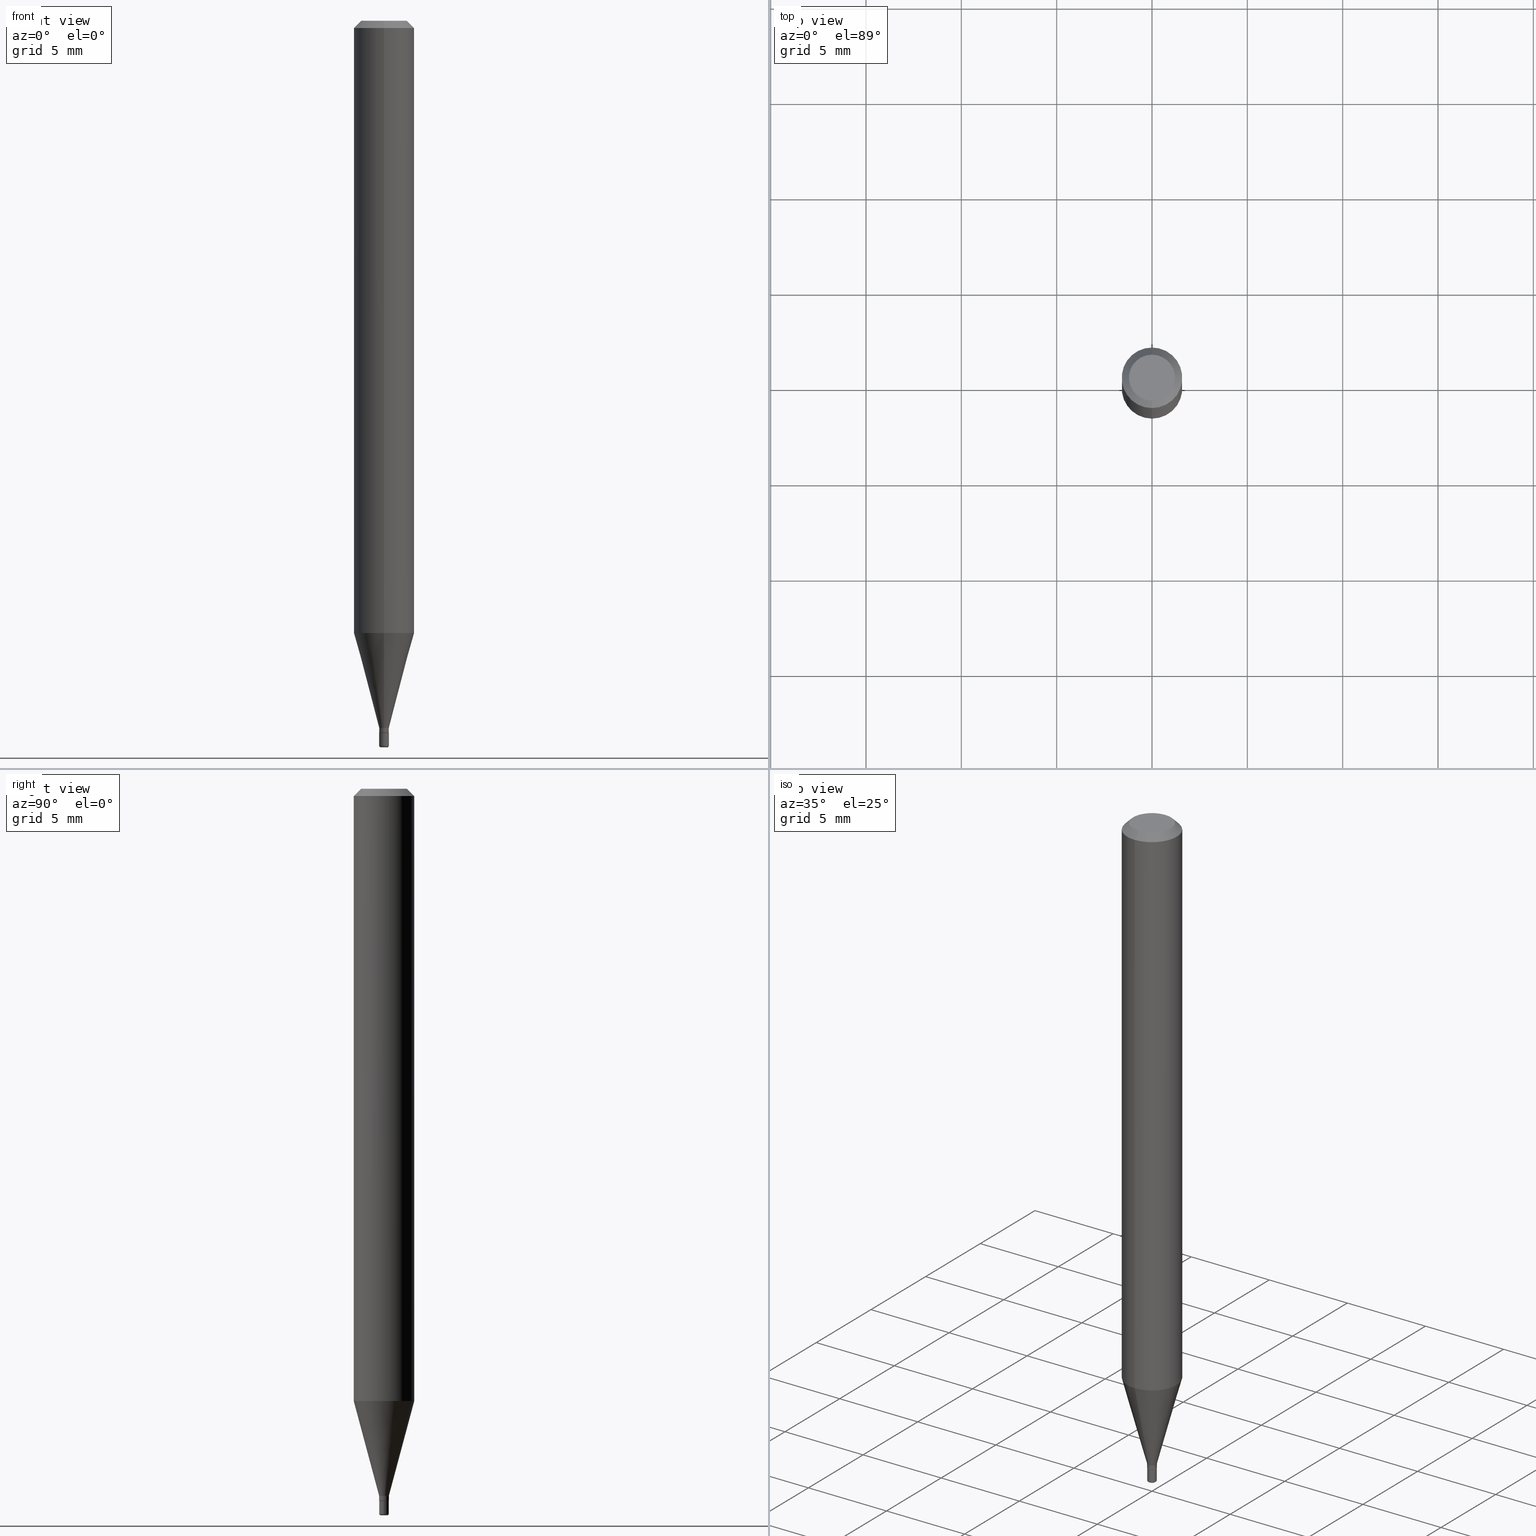
[diagram: canonical four-view strip — front | top / right | iso, engineering-drawing reading convention]
A machine part, canonical four-view strip (front | top / right | iso — engineering-drawing reading convention). The complete STEP part file that produces these views, byte-faithful:
ISO-10303-21;
HEADER;
FILE_DESCRIPTION (( 'STEP AP203' ),
    '1' );
FILE_NAME ('08988.STEP',
    '2024-02-29T21:04:08',
    ( '' ),
    ( '' ),
    'SwSTEP 2.0',
    'SolidWorks 2023',
    '' );
FILE_SCHEMA (( 'CONFIG_CONTROL_DESIGN' ));
ENDSEC;

DATA;
#1 = DIRECTION ( 'NONE',  ( -2.445468806185136597E-29, 3.491481338843145583E-15, 1.000000000000000000 ) ) ;
#2 = CYLINDRICAL_SURFACE ( 'NONE', #101, 0.06250000000000000000 ) ;
#3 = APPLICATION_PROTOCOL_DEFINITION ( 'international standard', 'config_control_design', 1994, #7 ) ;
#4 = CONICAL_SURFACE ( 'NONE', #393, 0.009499999999999987621, 0.7853981633972754173 ) ;
#5 = SECURITY_CLASSIFICATION ( '', '', #312 ) ;
#6 = AXIS2_PLACEMENT_3D ( 'NONE', #482, #290, #130 ) ;
#7 = APPLICATION_CONTEXT ( 'configuration controlled 3d designs of mechanical parts and assemblies' ) ;
#8 = ADVANCED_FACE ( 'NONE', ( #217 ), #253, .T. ) ;
#9 = DIRECTION ( 'NONE',  ( -6.982962677686265133E-15, -1.000000000000000000, 0.000000000000000000 ) ) ;
#10 = CIRCLE ( 'NONE', #454, 0.007000000000000001013 ) ;
#11 = EDGE_CURVE ( 'NONE', #504, #69, #243, .T. ) ;
#12 = CARTESIAN_POINT ( 'NONE',  ( -6.680636725634241101E-45, 9.538268826667372095E-31, 2.731855841564421065E-16 ) ) ;
#13 = ORIENTED_EDGE ( 'NONE', *, *, #352, .F. ) ;
#14 = CIRCLE ( 'NONE', #163, 0.01000000000000000021 ) ;
#15 = PRODUCT_DEFINITION_SHAPE ( 'NONE', 'NONE',  #166 ) ;
#16 = SHAPE_DEFINITION_REPRESENTATION ( #15, #374 ) ;
#17 = ORIENTED_EDGE ( 'NONE', *, *, #206, .F. ) ;
#18 = DIRECTION ( 'NONE',  ( -6.982962677686265922E-15, -1.000000000000000000, 0.000000000000000000 ) ) ;
#19 = CALENDAR_DATE ( 2024, 29, 2 ) ;
#20 = ORIENTED_EDGE ( 'NONE', *, *, #52, .F. ) ;
#21 = ORIENTED_EDGE ( 'NONE', *, *, #111, .F. ) ;
#22 = CARTESIAN_POINT ( 'NONE',  ( -0.007000000000000001013, -5.171588653716845491E-15, -1.500000000000000222 ) ) ;
#23 = CARTESIAN_POINT ( 'NONE',  ( 3.593599456806482161E-29, -5.130756106354806762E-15, -1.469500000000000028 ) ) ;
#24 = EDGE_CURVE ( 'NONE', #99, #262, #10, .T. ) ;
#25 = DIRECTION ( 'NONE',  ( 5.024295867787193854E-15, 0.7071067811864277797, 0.7071067811866673658 ) ) ;
#26 = FACE_OUTER_BOUND ( 'NONE', #355, .T. ) ;
#27 = ORIENTED_EDGE ( 'NONE', *, *, #52, .T. ) ;
#28 = ORIENTED_EDGE ( 'NONE', *, *, #330, .F. ) ;
#29 = AXIS2_PLACEMENT_3D ( 'NONE', #222, #34, #349 ) ;
#30 = CARTESIAN_POINT ( 'NONE',  ( -0.006999999999999999278, -5.177009572744982887E-15, -1.497000000000000108 ) ) ;
#31 = CONICAL_SURFACE ( 'NONE', #431, 0.009999999999999988065, 0.2617993877991492413 ) ;
#32 = COORDINATED_UNIVERSAL_TIME_OFFSET ( 5, 0, .BEHIND. ) ;
#33 = ORIENTED_EDGE ( 'NONE', *, *, #389, .T. ) ;
#34 = DIRECTION ( 'NONE',  ( -2.438088387897960049E-29, 3.491481338843145188E-15, 1.000000000000000000 ) ) ;
#35 = ORIENTED_EDGE ( 'NONE', *, *, #352, .T. ) ;
#36 = VERTEX_POINT ( 'NONE', #424 ) ;
#37 = CLOSED_SHELL ( 'NONE', ( #161, #320, #434, #318, #514, #510, #58, #362, #122, #203, #250, #216 ) ) ;
#38 = ORIENTED_EDGE ( 'NONE', *, *, #400, .T. ) ;
#39 = AXIS2_PLACEMENT_3D ( 'NONE', #165, #126, #408 ) ;
#40 = ORIENTED_EDGE ( 'NONE', *, *, #403, .T. ) ;
#41 = DIRECTION ( 'NONE',  ( -2.445457269007472935E-29, 3.491497860738215272E-15, 1.000000000000000000 ) ) ;
#42 = EDGE_CURVE ( 'NONE', #399, #53, #225, .T. ) ;
#43 = DIRECTION ( 'NONE',  ( -2.445457269007472935E-29, 3.491497860738215272E-15, 1.000000000000000000 ) ) ;
#44 = AXIS2_PLACEMENT_3D ( 'NONE', #334, #490, #97 ) ;
#45 = DIRECTION ( 'NONE',  ( -2.445457269007472935E-29, 3.491497860738215272E-15, 1.000000000000000000 ) ) ;
#46 = AXIS2_PLACEMENT_3D ( 'NONE', #221, #175, #338 ) ;
#47 = CARTESIAN_POINT ( 'NONE',  ( 0.009999999999999984596, -6.982962677686257096E-17, 4.876176775795928962E-31 ) ) ;
#48 = CARTESIAN_POINT ( 'NONE',  ( 0.006999999999999999278, -5.275628302991993622E-15, -1.497000000000000108 ) ) ;
#49 = CARTESIAN_POINT ( 'NONE',  ( 0.009999999999999970718, -5.296577191025051665E-15, -1.497000000000000108 ) ) ;
#50 = CONICAL_SURFACE ( 'NONE', #297, 0.06250000000000000000, 0.7853981633974488341 ) ;
#51 = PERSON_AND_ORGANIZATION_ROLE ( 'creator' ) ;
#52 = EDGE_CURVE ( 'NONE', #99, #70, #73, .T. ) ;
#53 = VERTEX_POINT ( 'NONE', #272 ) ;
#54 = VERTEX_POINT ( 'NONE', #345 ) ;
#55 = MANIFOLD_SOLID_BREP ( 'Body-Move/Copy2[2]', #37 ) ;
#56 = AXIS2_PLACEMENT_3D ( 'NONE', #177, #395, #120 ) ;
#57 = DIRECTION ( 'NONE',  ( -2.445457269007472935E-29, 3.491497860738215272E-15, 1.000000000000000000 ) ) ;
#58 = ADVANCED_FACE ( 'NONE', ( #386 ), #178, .T. ) ;
#59 = ORIENTED_EDGE ( 'NONE', *, *, #370, .F. ) ;
#60 = ORIENTED_EDGE ( 'NONE', *, *, #283, .T. ) ;
#61 = CARTESIAN_POINT ( 'NONE',  ( -4.364351673553607559E-16, -0.06250000000000442701, -1.264067332602633487 ) ) ;
#62 = LINE ( 'NONE', #258, #472 ) ;
#63 = CARTESIAN_POINT ( 'NONE',  ( -4.364351673553912750E-16, -0.06250000000000005551, -0.01499999999999948597 ) ) ;
#64 = CARTESIAN_POINT ( 'NONE',  ( 7.105427357604560509E-17, 0.009999999999994891448, -1.459999999999999964 ) ) ;
#65 = VERTEX_POINT ( 'NONE', #63 ) ;
#66 = DIRECTION ( 'NONE',  ( -2.445468806185136597E-29, 3.491481338843145583E-15, 1.000000000000000000 ) ) ;
#67 = DATE_AND_TIME ( #301, #247 ) ;
#68 = ORIENTED_EDGE ( 'NONE', *, *, #24, .F. ) ;
#69 = VERTEX_POINT ( 'NONE', #499 ) ;
#70 = VERTEX_POINT ( 'NONE', #226 ) ;
#71 = AXIS2_PLACEMENT_3D ( 'NONE', #176, #501, #145 ) ;
#72 = LOCAL_TIME ( 16, 4, 8.000000000000000000, #270 ) ;
#73 = CIRCLE ( 'NONE', #372, 0.002999999999999970572 ) ;
#74 = EDGE_CURVE ( 'NONE', #113, #54, #193, .T. ) ;
#75 = ORIENTED_EDGE ( 'NONE', *, *, #300, .F. ) ;
#76 = DIRECTION ( 'NONE',  ( -2.445468806185136597E-29, 3.491481338843145583E-15, 1.000000000000000000 ) ) ;
#77 = AXIS2_PLACEMENT_3D ( 'NONE', #435, #76, #359 ) ;
#78 = APPROVAL ( #164, 'UNSPECIFIED' ) ;
#79 = DIRECTION ( 'NONE',  ( -2.445457269007472935E-29, 3.491497860738215272E-15, 1.000000000000000000 ) ) ;
#80 = CARTESIAN_POINT ( 'NONE',  ( -6.680636725634241101E-45, 9.538268826667372095E-31, 2.731855841564421065E-16 ) ) ;
#81 = LINE ( 'NONE', #513, #321 ) ;
#82 = AXIS2_PLACEMENT_3D ( 'NONE', #387, #381, #495 ) ;
#83 = CARTESIAN_POINT ( 'NONE',  ( 0.000000000000000000, 0.000000000000000000, 0.000000000000000000 ) ) ;
#84 = DIRECTION ( 'NONE',  ( 2.445457269007472935E-29, -3.491497860738215272E-15, -1.000000000000000000 ) ) ;
#85 = ADVANCED_FACE ( 'NONE', ( #340 ), #459, .F. ) ;
#86 = DIRECTION ( 'NONE',  ( -2.445457269007472935E-29, 3.491497860738215272E-15, 1.000000000000000000 ) ) ;
#87 = EDGE_CURVE ( 'NONE', #54, #308, #160, .T. ) ;
#88 =( LENGTH_UNIT ( ) NAMED_UNIT ( * ) SI_UNIT ( $, .METRE. ) );
#89 = VERTEX_POINT ( 'NONE', #61 ) ;
#90 = CARTESIAN_POINT ( 'NONE',  ( 0.000000000000000000, 0.000000000000000000, 0.000000000000000000 ) ) ;
#91 = CYLINDRICAL_SURFACE ( 'NONE', #411, 0.009999999999999984596 ) ;
#92 = CIRCLE ( 'NONE', #39, 0.009499999999999987621 ) ;
#93 = DIRECTION ( 'NONE',  ( 1.839019923739593216E-15, 0.2588190451025239591, 0.9659258262890674240 ) ) ;
#94 = PERSON_AND_ORGANIZATION ( #110, #420 ) ;
#95 = ORIENTED_EDGE ( 'NONE', *, *, #11, .F. ) ;
#96 = ORIENTED_EDGE ( 'NONE', *, *, #460, .F. ) ;
#97 = DIRECTION ( 'NONE',  ( -6.982962677686265922E-15, -1.000000000000000000, 3.491497860738215272E-15 ) ) ;
#98 = EDGE_LOOP ( 'NONE', ( #139, #266, #463, #427 ) ) ;
#99 = VERTEX_POINT ( 'NONE', #22 ) ;
#100 = DIRECTION ( 'NONE',  ( -6.982962677686265133E-15, -1.000000000000000000, 0.000000000000000000 ) ) ;
#101 = AXIS2_PLACEMENT_3D ( 'NONE', #90, #327, #293 ) ;
#102 = DIRECTION ( 'NONE',  ( -4.937700262163694495E-15, -0.7071067811864228947, 0.7071067811866722508 ) ) ;
#103 = EDGE_LOOP ( 'NONE', ( #464, #35, #315, #471 ) ) ;
#104 = DIRECTION ( 'NONE',  ( 1.000000000000000000, -6.982962677686235945E-15, 0.000000000000000000 ) ) ;
#105 = DATE_AND_TIME ( #19, #507 ) ;
#106 = ORIENTED_EDGE ( 'NONE', *, *, #300, .T. ) ;
#107 = DIRECTION ( 'NONE',  ( -6.982962677686265922E-15, -1.000000000000000000, 0.000000000000000000 ) ) ;
#108 = PLANE ( 'NONE',  #29 ) ;
#109 = VECTOR ( 'NONE', #117, 39.37007874015748143 ) ;
#110 = PERSON ( 'UNSPECIFIED', 'UNSPECIFIED', 'UNSPECIFIED', ('UNSPECIFIED'), ('UNSPECIFIED'), ('UNSPECIFIED') ) ;
#111 = EDGE_CURVE ( 'NONE', #69, #89, #183, .T. ) ;
#112 = CARTESIAN_POINT ( 'NONE',  ( 3.668185903511136868E-31, -5.237246791107218877E-17, -0.01499999999999970281 ) ) ;
#113 = VERTEX_POINT ( 'NONE', #278 ) ;
#114 = DIRECTION ( 'NONE',  ( 2.445457269007472655E-29, -3.491497860738215272E-15, -1.000000000000000000 ) ) ;
#115 = AXIS2_PLACEMENT_3D ( 'NONE', #135, #348, #152 ) ;
#116 = LINE ( 'NONE', #336, #436 ) ;
#117 = DIRECTION ( 'NONE',  ( -2.445457269007472935E-29, 3.491497860738215272E-15, 1.000000000000000000 ) ) ;
#118 = EDGE_CURVE ( 'NONE', #467, #267, #280, .T. ) ;
#119 = CARTESIAN_POINT ( 'NONE',  ( 3.316907271900976589E-16, 0.04750000000000000749, -2.925335630684416481E-17 ) ) ;
#120 = DIRECTION ( 'NONE',  ( 1.000000000000000000, -6.982962677686332186E-15, 0.000000000000000000 ) ) ;
#121 = LINE ( 'NONE', #285, #123 ) ;
#122 = ADVANCED_FACE ( 'NONE', ( #249 ), #153, .F. ) ;
#123 = VECTOR ( 'NONE', #365, 39.37007874015748143 ) ;
#124 = LINE ( 'NONE', #47, #461 ) ;
#125 = AXIS2_PLACEMENT_3D ( 'NONE', #494, #428, #187 ) ;
#126 = DIRECTION ( 'NONE',  ( -2.445457269007472935E-29, 3.491497860738215272E-15, 1.000000000000000000 ) ) ;
#127 = CARTESIAN_POINT ( 'NONE',  ( 2.575717417130697276E-16, 0.009999999999994891448, -1.459999999999999964 ) ) ;
#128 = DIRECTION ( 'NONE',  ( -4.851104656540966641E-15, -0.7071067811865503483, -0.7071067811865446862 ) ) ;
#129 = EDGE_CURVE ( 'NONE', #89, #65, #121, .T. ) ;
#130 = DIRECTION ( 'NONE',  ( 1.000000000000000000, 0.000000000000000000, 0.000000000000000000 ) ) ;
#131 = ORIENTED_EDGE ( 'NONE', *, *, #295, .T. ) ;
#132 = AXIS2_PLACEMENT_3D ( 'NONE', #23, #57, #316 ) ;
#133 = ORIENTED_EDGE ( 'NONE', *, *, #277, .T. ) ;
#134 = DIRECTION ( 'NONE',  ( -2.445457269007472935E-29, 3.491497860738215272E-15, 1.000000000000000000 ) ) ;
#135 = CARTESIAN_POINT ( 'NONE',  ( 3.660866802859150328E-29, -5.226747564248189155E-15, -1.497000000000000108 ) ) ;
#136 = DIRECTION ( 'NONE',  ( -2.445468806185136597E-29, 3.491481338843145583E-15, 1.000000000000000000 ) ) ;
#137 = FACE_OUTER_BOUND ( 'NONE', #350, .T. ) ;
#138 = ORIENTED_EDGE ( 'NONE', *, *, #74, .F. ) ;
#139 = ORIENTED_EDGE ( 'NONE', *, *, #426, .F. ) ;
#140 = AXIS2_PLACEMENT_3D ( 'NONE', #404, #480, #325 ) ;
#141 = APPROVAL_PERSON_ORGANIZATION ( #254, #78, #409 ) ;
#142 = DIRECTION ( 'NONE',  ( 7.105427357601001859E-15, 1.000000000000000000, -3.491481338843145583E-15 ) ) ;
#143 = EDGE_CURVE ( 'NONE', #53, #399, #14, .T. ) ;
#144 = EDGE_LOOP ( 'NONE', ( #20, #508, #167, #233 ) ) ;
#145 = DIRECTION ( 'NONE',  ( -6.982962677686265133E-15, -1.000000000000000000, 3.491497860738214878E-15 ) ) ;
#146 = ORIENTED_EDGE ( 'NONE', *, *, #304, .T. ) ;
#147 = ADVANCED_FACE ( 'NONE', ( #319 ), #108, .F. ) ;
#148 = CARTESIAN_POINT ( 'NONE',  ( 6.982962677689861205E-17, 0.009999999999994867161, -1.470000000000000195 ) ) ;
#149 = ORIENTED_EDGE ( 'NONE', *, *, #304, .F. ) ;
#150 = CIRCLE ( 'NONE', #281, 0.009499999999999987621 ) ;
#151 = AXIS2_PLACEMENT_3D ( 'NONE', #440, #170, #248 ) ;
#152 = DIRECTION ( 'NONE',  ( 1.000000000000000000, -6.982962677686256455E-15, 0.000000000000000000 ) ) ;
#153 = PLANE ( 'NONE',  #218 ) ;
#154 = EDGE_LOOP ( 'NONE', ( #351, #27, #59, #28 ) ) ;
#155 = APPROVAL ( #194, 'UNSPECIFIED' ) ;
#156 = ORIENTED_EDGE ( 'NONE', *, *, #74, .T. ) ;
#157 = CARTESIAN_POINT ( 'NONE',  ( 0.01000000000000000021, -5.202307194876286528E-15, -1.470000000000000195 ) ) ;
#158 = CARTESIAN_POINT ( 'NONE',  ( 7.105427357600990913E-17, 0.009999999999999988065, -3.491497860738210835E-17 ) ) ;
#159 = DIRECTION ( 'NONE',  ( -2.445457269007472935E-29, 3.491497860738215272E-15, 1.000000000000000000 ) ) ;
#160 = CIRCLE ( 'NONE', #237, 0.009999999999999988065 ) ;
#161 = ADVANCED_FACE ( 'NONE', ( #414 ), #215, .T. ) ;
#162 = DIRECTION ( 'NONE',  ( -2.445457269007472935E-29, 3.491497860738215272E-15, 1.000000000000000000 ) ) ;
#163 = AXIS2_PLACEMENT_3D ( 'NONE', #292, #209, #516 ) ;
#164 = APPROVAL_STATUS ( 'not_yet_approved' ) ;
#165 = CARTESIAN_POINT ( 'NONE',  ( 3.594822185440985220E-29, -5.132501855285176510E-15, -1.470000000000000195 ) ) ;
#166 = PRODUCT_DEFINITION ( 'UNKNOWN', '', #205, #244 ) ;
#167 = ORIENTED_EDGE ( 'NONE', *, *, #330, .T. ) ;
#168 = DIRECTION ( 'NONE',  ( 6.982962677686265922E-15, 1.000000000000000000, -3.483106191921935554E-15 ) ) ;
#169 = FACE_OUTER_BOUND ( 'NONE', #246, .T. ) ;
#170 = DIRECTION ( 'NONE',  ( -2.445457269007472935E-29, 3.491497860738215272E-15, 1.000000000000000000 ) ) ;
#171 = CONICAL_SURFACE ( 'NONE', #190, 0.06250000000000000000, 0.7853981633974488341 ) ;
#172 = PLANE ( 'NONE',  #44 ) ;
#173 = APPROVAL_PERSON_ORGANIZATION ( #94, #291, #470 ) ;
#174 = EDGE_LOOP ( 'NONE', ( #383, #182, #198, #60 ) ) ;
#175 = DIRECTION ( 'NONE',  ( -2.445468806185136597E-29, 3.491481338843145583E-15, 1.000000000000000000 ) ) ;
#176 = CARTESIAN_POINT ( 'NONE',  ( 0.000000000000000000, 0.000000000000000000, 0.000000000000000000 ) ) ;
#177 = CARTESIAN_POINT ( 'NONE',  ( 3.668203209277704895E-29, -5.237222008264718177E-15, -1.500000000000000222 ) ) ;
#178 = CYLINDRICAL_SURFACE ( 'NONE', #125, 0.06250000000000000000 ) ;
#179 = PRODUCT ( '08988', '08988', '', ( #333 ) ) ;
#180 = DATE_AND_TIME ( #219, #289 ) ;
#181 = ORIENTED_EDGE ( 'NONE', *, *, #481, .F. ) ;
#182 = ORIENTED_EDGE ( 'NONE', *, *, #438, .F. ) ;
#183 = LINE ( 'NONE', #344, #483 ) ;
#184 = EDGE_CURVE ( 'NONE', #113, #36, #150, .T. ) ;
#185 = ORIENTED_EDGE ( 'NONE', *, *, #283, .F. ) ;
#186 = EDGE_CURVE ( 'NONE', #89, #271, #309, .T. ) ;
#187 = DIRECTION ( 'NONE',  ( -6.982962677686265922E-15, -1.000000000000000000, 3.491497860738214878E-15 ) ) ;
#188 = EDGE_LOOP ( 'NONE', ( #397, #453, #191, #181 ) ) ;
#189 = DIRECTION ( 'NONE',  ( 6.982962677686265922E-15, 1.000000000000000000, -3.483106191921935554E-15 ) ) ;
#190 = AXIS2_PLACEMENT_3D ( 'NONE', #307, #302, #168 ) ;
#191 = ORIENTED_EDGE ( 'NONE', *, *, #42, .F. ) ;
#192 = CC_DESIGN_APPROVAL ( #155, ( #205 ) ) ;
#193 = LINE ( 'NONE', #311, #245 ) ;
#194 = APPROVAL_STATUS ( 'not_yet_approved' ) ;
#195 = CARTESIAN_POINT ( 'NONE',  ( 3.091222647027998016E-29, -4.413488387611157354E-15, -1.264067332602633709 ) ) ;
#196 = APPROVAL_ROLE ( '' ) ;
#197 = EDGE_LOOP ( 'NONE', ( #106, #432, #390, #21 ) ) ;
#198 = ORIENTED_EDGE ( 'NONE', *, *, #118, .T. ) ;
#199 = CIRCLE ( 'NONE', #257, 0.06250000000000000000 ) ;
#200 = ORIENTED_EDGE ( 'NONE', *, *, #184, .T. ) ;
#201 = CARTESIAN_POINT ( 'NONE',  ( 3.668185903511136868E-31, -5.237246791107218877E-17, -0.01499999999999970281 ) ) ;
#202 = DIRECTION ( 'NONE',  ( -2.445457269007472935E-29, 3.491497860738215272E-15, 1.000000000000000000 ) ) ;
#203 = ADVANCED_FACE ( 'NONE', ( #452 ), #172, .F. ) ;
#204 = AXIS2_PLACEMENT_3D ( 'NONE', #491, #265, #18 ) ;
#205 = PRODUCT_DEFINITION_FORMATION_WITH_SPECIFIED_SOURCE ( 'ANY', '', #179, .NOT_KNOWN. ) ;
#206 = EDGE_CURVE ( 'NONE', #308, #54, #441, .T. ) ;
#207 = DIRECTION ( 'NONE',  ( -2.445468806185136877E-29, 3.491481338843145188E-15, 1.000000000000000000 ) ) ;
#208 = DIRECTION ( 'NONE',  ( -6.982962677686265133E-15, -1.000000000000000000, 3.491497860738214483E-15 ) ) ;
#209 = DIRECTION ( 'NONE',  ( -2.445468806185136597E-29, 3.491481338843145583E-15, 1.000000000000000000 ) ) ;
#210 = VECTOR ( 'NONE', #93, 39.37007874015748143 ) ;
#211 = DIRECTION ( 'NONE',  ( -6.982962677686265133E-15, -1.000000000000000000, 0.000000000000000000 ) ) ;
#212 = CARTESIAN_POINT ( 'NONE',  ( 3.570367612750911147E-29, -5.097586876677794968E-15, -1.459999999999999964 ) ) ;
#213 = ADVANCED_FACE ( 'NONE', ( #468 ), #274, .T. ) ;
#214 =( CONVERSION_BASED_UNIT ( 'INCH', #326 ) LENGTH_UNIT ( ) NAMED_UNIT ( #475 ) );
#215 = CYLINDRICAL_SURFACE ( 'NONE', #71, 0.009999999999999988065 ) ;
#216 = ADVANCED_FACE ( 'NONE', ( #26 ), #256, .T. ) ;
#217 = FACE_OUTER_BOUND ( 'NONE', #144, .T. ) ;
#218 = AXIS2_PLACEMENT_3D ( 'NONE', #119, #114, #479 ) ;
#219 = CALENDAR_DATE ( 2024, 29, 2 ) ;
#220 = ORIENTED_EDGE ( 'NONE', *, *, #129, .T. ) ;
#221 = CARTESIAN_POINT ( 'NONE',  ( 3.660866802859150328E-29, -5.226747564248189155E-15, -1.497000000000000108 ) ) ;
#222 = CARTESIAN_POINT ( 'NONE',  ( 3.582686580359766038E-29, -5.359686688179453325E-15, -1.500000000000000222 ) ) ;
#223 = CARTESIAN_POINT ( 'NONE',  ( 3.594839145092150820E-29, -5.132477568099424807E-15, -1.470000000000000195 ) ) ;
#224 = ORIENTED_EDGE ( 'NONE', *, *, #184, .F. ) ;
#225 = CIRCLE ( 'NONE', #232, 0.01000000000000000021 ) ;
#226 = CARTESIAN_POINT ( 'NONE',  ( -0.009999999999999970718, -5.108558292597796111E-15, -1.497000000000000108 ) ) ;
#227 = PERSON_AND_ORGANIZATION_ROLE ( 'creator' ) ;
#228 = ORIENTED_EDGE ( 'NONE', *, *, #87, .F. ) ;
#229 = AXIS2_PLACEMENT_3D ( 'NONE', #80, #380, #358 ) ;
#230 = CC_DESIGN_APPROVAL ( #78, ( #166 ) ) ;
#231 = EDGE_LOOP ( 'NONE', ( #96, #38, #236, #313 ) ) ;
#232 = AXIS2_PLACEMENT_3D ( 'NONE', #223, #66, #104 ) ;
#233 = ORIENTED_EDGE ( 'NONE', *, *, #400, .F. ) ;
#234 = FACE_OUTER_BOUND ( 'NONE', #154, .T. ) ;
#235 = CARTESIAN_POINT ( 'NONE',  ( 4.440892098500625669E-16, 0.06250000000000000000, -2.182186162961384299E-16 ) ) ;
#236 = ORIENTED_EDGE ( 'NONE', *, *, #481, .T. ) ;
#237 = AXIS2_PLACEMENT_3D ( 'NONE', #384, #134, #100 ) ;
#238 = MANIFOLD_SOLID_BREP ( 'Body-Move/Copy2[1]', #398 ) ;
#239 = CIRCLE ( 'NONE', #357, 0.06250000000000000000 ) ;
#240 = LINE ( 'NONE', #158, #488 ) ;
#241 = DIRECTION ( 'NONE',  ( -6.982962677686266711E-15, -1.000000000000000000, 3.491481338843145583E-15 ) ) ;
#242 = DIRECTION ( 'NONE',  ( -6.982962677686265922E-15, -1.000000000000000000, 3.483106191921935554E-15 ) ) ;
#243 = CIRCLE ( 'NONE', #323, 0.009999999999999988065 ) ;
#244 = DESIGN_CONTEXT ( 'detailed design', #7, 'design' ) ;
#245 = VECTOR ( 'NONE', #25, 39.37007874015748143 ) ;
#246 = EDGE_LOOP ( 'NONE', ( #138, #200, #40, #228 ) ) ;
#247 = LOCAL_TIME ( 16, 4, 8.000000000000000000, #354 ) ;
#248 = DIRECTION ( 'NONE',  ( -6.982962677686265133E-15, -1.000000000000000000, 0.000000000000000000 ) ) ;
#249 = FACE_OUTER_BOUND ( 'NONE', #337, .T. ) ;
#250 = ADVANCED_FACE ( 'NONE', ( #169 ), #324, .T. ) ;
#251 = FACE_OUTER_BOUND ( 'NONE', #197, .T. ) ;
#252 = DIRECTION ( 'NONE',  ( -6.982962677686265922E-15, -1.000000000000000000, 0.000000000000000000 ) ) ;
#253 = TOROIDAL_SURFACE ( 'NONE', #46, 0.006999999999999999278, 0.002999999999999970572 ) ;
#254 = PERSON_AND_ORGANIZATION ( #110, #420 ) ;
#255 = CARTESIAN_POINT ( 'NONE',  ( 3.594822185440985220E-29, -5.132501855285176510E-15, -1.470000000000000195 ) ) ;
#256 = CYLINDRICAL_SURFACE ( 'NONE', #287, 0.009999999999999988065 ) ;
#257 = AXIS2_PLACEMENT_3D ( 'NONE', #201, #43, #242 ) ;
#258 = CARTESIAN_POINT ( 'NONE',  ( -0.009999999999999984596, 7.105427357600990913E-17, -4.918935090254898390E-31 ) ) ;
#259 = PRODUCT_RELATED_PRODUCT_CATEGORY ( 'detail', '', ( #179 ) ) ;
#260 = EDGE_CURVE ( 'NONE', #262, #99, #268, .T. ) ;
#261 = ORIENTED_EDGE ( 'NONE', *, *, #277, .F. ) ;
#262 = VERTEX_POINT ( 'NONE', #515 ) ;
#263 = CC_DESIGN_PERSON_AND_ORGANIZATION_ASSIGNMENT ( #275, #392, ( #5 ) ) ;
#264 = CARTESIAN_POINT ( 'NONE',  ( 3.594822185440985220E-29, -5.132501855285176510E-15, -1.470000000000000195 ) ) ;
#265 = DIRECTION ( 'NONE',  ( -2.445457269007472935E-29, 3.491497860738215272E-15, 1.000000000000000000 ) ) ;
#266 = ORIENTED_EDGE ( 'NONE', *, *, #11, .T. ) ;
#267 = VERTEX_POINT ( 'NONE', #361 ) ;
#268 = CIRCLE ( 'NONE', #56, 0.007000000000000001013 ) ;
#269 = CARTESIAN_POINT ( 'NONE',  ( 3.668203209277704895E-29, -5.237222008264718177E-15, -1.500000000000000222 ) ) ;
#270 = COORDINATED_UNIVERSAL_TIME_OFFSET ( 5, 0, .BEHIND. ) ;
#271 = VERTEX_POINT ( 'NONE', #322 ) ;
#272 = CARTESIAN_POINT ( 'NONE',  ( -0.01000000000000000021, -5.108558292597796111E-15, -1.470000000000000195 ) ) ;
#273 = ORIENTED_EDGE ( 'NONE', *, *, #143, .T. ) ;
#274 = CYLINDRICAL_SURFACE ( 'NONE', #506, 0.009999999999999984596 ) ;
#275 = PERSON_AND_ORGANIZATION ( #110, #420 ) ;
#276 = CIRCLE ( 'NONE', #376, 0.009999999999999988065 ) ;
#277 = EDGE_CURVE ( 'NONE', #54, #504, #240, .T. ) ;
#278 = CARTESIAN_POINT ( 'NONE',  ( 6.927791673664548863E-17, 0.009499999999994854574, -1.470000000000000195 ) ) ;
#279 = DIRECTION ( 'NONE',  ( 1.000000000000000000, -6.982962677686400817E-15, 0.000000000000000000 ) ) ;
#280 = LINE ( 'NONE', #469, #360 ) ;
#281 = AXIS2_PLACEMENT_3D ( 'NONE', #264, #339, #107 ) ;
#282 = CONICAL_SURFACE ( 'NONE', #151, 0.009999999999999988065, 0.2617993877991492413 ) ;
#283 = EDGE_CURVE ( 'NONE', #267, #65, #199, .T. ) ;
#284 = FACE_OUTER_BOUND ( 'NONE', #174, .T. ) ;
#285 = CARTESIAN_POINT ( 'NONE',  ( -4.364351673553916201E-16, -0.06250000000000000000, 2.182186162961384299E-16 ) ) ;
#286 = ADVANCED_FACE ( 'NONE', ( #234 ), #332, .T. ) ;
#287 = AXIS2_PLACEMENT_3D ( 'NONE', #379, #335, #455 ) ;
#288 = LINE ( 'NONE', #235, #109 ) ;
#289 = LOCAL_TIME ( 16, 4, 8.000000000000000000, #32 ) ;
#290 = DIRECTION ( 'NONE',  ( 0.000000000000000000, 0.000000000000000000, 1.000000000000000000 ) ) ;
#291 = APPROVAL ( #496, 'UNSPECIFIED' ) ;
#292 = CARTESIAN_POINT ( 'NONE',  ( 3.594839145092150820E-29, -5.132477568099424807E-15, -1.470000000000000195 ) ) ;
#293 = DIRECTION ( 'NONE',  ( -6.982962677686265922E-15, -1.000000000000000000, 3.491497860738214878E-15 ) ) ;
#294 = FACE_OUTER_BOUND ( 'NONE', #98, .T. ) ;
#295 = EDGE_CURVE ( 'NONE', #65, #267, #239, .T. ) ;
#296 = PERSON_AND_ORGANIZATION ( #110, #420 ) ;
#297 = AXIS2_PLACEMENT_3D ( 'NONE', #518, #84, #189 ) ;
#298 =( NAMED_UNIT ( * ) SI_UNIT ( $, .STERADIAN. ) SOLID_ANGLE_UNIT ( ) );
#299 = EDGE_LOOP ( 'NONE', ( #146, #156, #17, #497 ) ) ;
#300 = EDGE_CURVE ( 'NONE', #69, #504, #276, .T. ) ;
#301 = CALENDAR_DATE ( 2024, 29, 2 ) ;
#302 = DIRECTION ( 'NONE',  ( 2.445457269007472935E-29, -3.491497860738215272E-15, -1.000000000000000000 ) ) ;
#303 = DIRECTION ( 'NONE',  ( -2.445457269007472935E-29, 3.491497860738215272E-15, 1.000000000000000000 ) ) ;
#304 = EDGE_CURVE ( 'NONE', #36, #113, #92, .T. ) ;
#305 = DIRECTION ( 'NONE',  ( 1.000000000000000000, -6.982962677686332186E-15, 0.000000000000000000 ) ) ;
#306 = DIRECTION ( 'NONE',  ( 1.000000000000000000, -6.982962677686267499E-15, 4.876176775795936353E-29 ) ) ;
#307 = CARTESIAN_POINT ( 'NONE',  ( 3.668185903511136868E-31, -5.237246791107218877E-17, -0.01499999999999970281 ) ) ;
#308 = VERTEX_POINT ( 'NONE', #446 ) ;
#309 = CIRCLE ( 'NONE', #419, 0.06250000000000000000 ) ;
#310 = DIRECTION ( 'NONE',  ( 2.438088387897960049E-29, -3.491481338843145188E-15, -1.000000000000000000 ) ) ;
#311 = CARTESIAN_POINT ( 'NONE',  ( 6.750155989724537217E-17, 0.009499999999994854574, -1.470000000000000195 ) ) ;
#312 = SECURITY_CLASSIFICATION_LEVEL ( 'unclassified' ) ;
#313 = ORIENTED_EDGE ( 'NONE', *, *, #143, .F. ) ;
#314 = DIRECTION ( 'NONE',  ( -1.000000000000000000, 6.982962677686265922E-15, -4.876176775795935793E-29 ) ) ;
#315 = ORIENTED_EDGE ( 'NONE', *, *, #295, .F. ) ;
#316 = DIRECTION ( 'NONE',  ( -6.982962677686265133E-15, -1.000000000000000000, 0.000000000000000000 ) ) ;
#317 = DATE_TIME_ROLE ( 'classification_date' ) ;
#318 = ADVANCED_FACE ( 'NONE', ( #366 ), #2, .T. ) ;
#319 = FACE_OUTER_BOUND ( 'NONE', #342, .T. ) ;
#320 = ADVANCED_FACE ( 'NONE', ( #443 ), #4, .T. ) ;
#321 = VECTOR ( 'NONE', #202, 39.37007874015748143 ) ;
#322 = CARTESIAN_POINT ( 'NONE',  ( 4.440892098500933817E-16, 0.06249999999999558686, -1.264067332602633931 ) ) ;
#323 = AXIS2_PLACEMENT_3D ( 'NONE', #493, #303, #457 ) ;
#324 = CONICAL_SURFACE ( 'NONE', #204, 0.009499999999999987621, 0.7853981633972754173 ) ;
#325 = DIRECTION ( 'NONE',  ( 1.000000000000000000, -6.982962677686256455E-15, 0.000000000000000000 ) ) ;
#326 = LENGTH_MEASURE_WITH_UNIT ( LENGTH_MEASURE( 0.02539999999999999897 ), #88 );
#327 = DIRECTION ( 'NONE',  ( -2.445457269007472935E-29, 3.491497860738215272E-15, 1.000000000000000000 ) ) ;
#328 = CARTESIAN_POINT ( 'NONE',  ( -3.773273898774340269E-16, -0.04750000000000000749, 4.390317325415073368E-16 ) ) ;
#329 = DATE_AND_TIME ( #369, #473 ) ;
#330 = EDGE_CURVE ( 'NONE', #262, #477, #401, .T. ) ;
#331 =( NAMED_UNIT ( * ) PLANE_ANGLE_UNIT ( ) SI_UNIT ( $, .RADIAN. ) );
#332 = TOROIDAL_SURFACE ( 'NONE', #77, 0.006999999999999999278, 0.002999999999999970572 ) ;
#333 = MECHANICAL_CONTEXT ( 'NONE', #343, 'mechanical' ) ;
#334 = CARTESIAN_POINT ( 'NONE',  ( 3.594822185440985220E-29, -5.132501855285176510E-15, -1.470000000000000195 ) ) ;
#335 = DIRECTION ( 'NONE',  ( -2.445457269007472935E-29, 3.491497860738215272E-15, 1.000000000000000000 ) ) ;
#336 = CARTESIAN_POINT ( 'NONE',  ( -6.633814543798349809E-17, -0.009500000000005120668, -1.470000000000000195 ) ) ;
#337 = EDGE_LOOP ( 'NONE', ( #378, #429 ) ) ;
#338 = DIRECTION ( 'NONE',  ( 1.000000000000000000, -6.982962677686256455E-15, 4.883557194083109538E-29 ) ) ;
#339 = DIRECTION ( 'NONE',  ( -2.445457269007472935E-29, 3.491497860738215272E-15, 1.000000000000000000 ) ) ;
#340 = FACE_OUTER_BOUND ( 'NONE', #388, .T. ) ;
#341 = CARTESIAN_POINT ( 'NONE',  ( 0.000000000000000000, 0.000000000000000000, 0.000000000000000000 ) ) ;
#342 = EDGE_LOOP ( 'NONE', ( #476, #68 ) ) ;
#343 = APPLICATION_CONTEXT ( 'configuration controlled 3d designs of mechanical parts and assemblies' ) ;
#344 = CARTESIAN_POINT ( 'NONE',  ( -6.982962677682687501E-17, -0.01000000000000508468, -1.459999999999999964 ) ) ;
#345 = CARTESIAN_POINT ( 'NONE',  ( 7.105427357604562974E-17, 0.009999999999994822059, -1.469500000000000028 ) ) ;
#346 = EDGE_LOOP ( 'NONE', ( #451, #133, #75, #489 ) ) ;
#347 = CIRCLE ( 'NONE', #82, 0.06250000000000000000 ) ;
#348 = DIRECTION ( 'NONE',  ( -2.445468806185136597E-29, 3.491481338843145583E-15, 1.000000000000000000 ) ) ;
#349 = DIRECTION ( 'NONE',  ( 1.000000000000000000, -6.982962677686265922E-15, 4.876176775795935793E-29 ) ) ;
#350 = EDGE_LOOP ( 'NONE', ( #511, #449, #131, #422 ) ) ;
#351 = ORIENTED_EDGE ( 'NONE', *, *, #260, .T. ) ;
#352 = EDGE_CURVE ( 'NONE', #271, #267, #288, .T. ) ;
#353 = ORIENTED_EDGE ( 'NONE', *, *, #430, .T. ) ;
#354 = COORDINATED_UNIVERSAL_TIME_OFFSET ( 5, 0, .BEHIND. ) ;
#355 = EDGE_LOOP ( 'NONE', ( #261, #509, #33, #95 ) ) ;
#356 = CC_DESIGN_PERSON_AND_ORGANIZATION_ASSIGNMENT ( #450, #456, ( #205 ) ) ;
#357 = AXIS2_PLACEMENT_3D ( 'NONE', #112, #79, #402 ) ;
#358 = DIRECTION ( 'NONE',  ( -6.982962677686265133E-15, -1.000000000000000000, 3.491497860738214483E-15 ) ) ;
#359 = DIRECTION ( 'NONE',  ( 1.000000000000000000, -6.982962677686256455E-15, 4.883557194083109538E-29 ) ) ;
#360 = VECTOR ( 'NONE', #517, 39.37007874015748143 ) ;
#361 = CARTESIAN_POINT ( 'NONE',  ( 4.440892098500936776E-16, 0.06249999999999993755, -0.01499999999999992138 ) ) ;
#362 = ADVANCED_FACE ( 'NONE', ( #284 ), #50, .T. ) ;
#363 = CC_DESIGN_DATE_AND_TIME_ASSIGNMENT ( #105, #317, ( #5 ) ) ;
#364 = FACE_OUTER_BOUND ( 'NONE', #231, .T. ) ;
#365 = DIRECTION ( 'NONE',  ( -2.445457269007472935E-29, 3.491497860738215272E-15, 1.000000000000000000 ) ) ;
#366 = FACE_OUTER_BOUND ( 'NONE', #103, .T. ) ;
#367 = CARTESIAN_POINT ( 'NONE',  ( 3.570367612750911147E-29, -5.097586876677794968E-15, -1.459999999999999964 ) ) ;
#368 = CIRCLE ( 'NONE', #115, 0.009999999999999970718 ) ;
#369 = CALENDAR_DATE ( 2024, 29, 2 ) ;
#370 = EDGE_CURVE ( 'NONE', #477, #70, #368, .T. ) ;
#371 = DIRECTION ( 'NONE',  ( 1.000000000000000000, -6.982962677686267499E-15, 4.876176775795936353E-29 ) ) ;
#372 = AXIS2_PLACEMENT_3D ( 'NONE', #30, #142, #391 ) ;
#373 = CC_DESIGN_PERSON_AND_ORGANIZATION_ASSIGNMENT ( #296, #51, ( #166 ) ) ;
#374 = ADVANCED_BREP_SHAPE_REPRESENTATION ( '08988', ( #238, #55, #6 ), #478 ) ;
#375 = COORDINATED_UNIVERSAL_TIME_OFFSET ( 5, 0, .BEHIND. ) ;
#376 = AXIS2_PLACEMENT_3D ( 'NONE', #367, #162, #211 ) ;
#377 = DATE_TIME_ROLE ( 'creation_date' ) ;
#378 = ORIENTED_EDGE ( 'NONE', *, *, #438, .T. ) ;
#379 = CARTESIAN_POINT ( 'NONE',  ( 0.000000000000000000, 0.000000000000000000, 0.000000000000000000 ) ) ;
#380 = DIRECTION ( 'NONE',  ( -2.445457269007472935E-29, 3.491497860738215272E-15, 1.000000000000000000 ) ) ;
#381 = DIRECTION ( 'NONE',  ( -2.445457269007472935E-29, 3.491497860738215272E-15, 1.000000000000000000 ) ) ;
#382 = PERSON_AND_ORGANIZATION ( #110, #420 ) ;
#383 = ORIENTED_EDGE ( 'NONE', *, *, #437, .F. ) ;
#384 = CARTESIAN_POINT ( 'NONE',  ( 3.593599456806482161E-29, -5.130756106354806762E-15, -1.469500000000000028 ) ) ;
#385 = DIRECTION ( 'NONE',  ( -6.982962677686265922E-15, -1.000000000000000000, 4.370956789862821150E-15 ) ) ;
#386 = FACE_OUTER_BOUND ( 'NONE', #415, .T. ) ;
#387 = CARTESIAN_POINT ( 'NONE',  ( 3.091222647027998016E-29, -4.413488387611157354E-15, -1.264067332602633709 ) ) ;
#388 = EDGE_LOOP ( 'NONE', ( #421, #273 ) ) ;
#389 = EDGE_CURVE ( 'NONE', #308, #69, #81, .T. ) ;
#390 = ORIENTED_EDGE ( 'NONE', *, *, #186, .F. ) ;
#391 = DIRECTION ( 'NONE',  ( -1.000000000000000000, 7.105427357600930861E-15, 0.000000000000000000 ) ) ;
#392 = PERSON_AND_ORGANIZATION_ROLE ( 'classification_officer' ) ;
#393 = AXIS2_PLACEMENT_3D ( 'NONE', #255, #86, #252 ) ;
#394 = CIRCLE ( 'NONE', #448, 0.04750000000000000749 ) ;
#395 = DIRECTION ( 'NONE',  ( -2.445468806185136597E-29, 3.491481338843145583E-15, 1.000000000000000000 ) ) ;
#396 = APPROVAL_DATE_TIME ( #180, #291 ) ;
#397 = ORIENTED_EDGE ( 'NONE', *, *, #370, .T. ) ;
#398 = CLOSED_SHELL ( 'NONE', ( #286, #213, #85, #512, #8, #147 ) ) ;
#399 = VERTEX_POINT ( 'NONE', #157 ) ;
#400 = EDGE_CURVE ( 'NONE', #70, #477, #405, .T. ) ;
#401 = CIRCLE ( 'NONE', #498, 0.002999999999999970572 ) ;
#402 = DIRECTION ( 'NONE',  ( -6.982962677686265922E-15, -1.000000000000000000, 3.483106191921935554E-15 ) ) ;
#403 = EDGE_CURVE ( 'NONE', #36, #308, #116, .T. ) ;
#404 = CARTESIAN_POINT ( 'NONE',  ( 3.660866802859150328E-29, -5.226747564248189155E-15, -1.497000000000000108 ) ) ;
#405 = CIRCLE ( 'NONE', #140, 0.009999999999999970718 ) ;
#406 = CC_DESIGN_APPROVAL ( #291, ( #5 ) ) ;
#407 = DIRECTION ( 'NONE',  ( -2.445468806185136877E-29, 3.491481338843145188E-15, 1.000000000000000000 ) ) ;
#408 = DIRECTION ( 'NONE',  ( -6.982962677686265922E-15, -1.000000000000000000, 0.000000000000000000 ) ) ;
#409 = APPROVAL_ROLE ( '' ) ;
#410 = CIRCLE ( 'NONE', #229, 0.04750000000000000749 ) ;
#411 = AXIS2_PLACEMENT_3D ( 'NONE', #83, #1, #371 ) ;
#412 = PERSON_AND_ORGANIZATION_ROLE ( 'design_owner' ) ;
#413 = APPLICATION_PROTOCOL_DEFINITION ( 'international standard', 'config_control_design', 1994, #343 ) ;
#414 = FACE_OUTER_BOUND ( 'NONE', #346, .T. ) ;
#415 = EDGE_LOOP ( 'NONE', ( #13, #353, #220, #185 ) ) ;
#416 = CC_DESIGN_DATE_AND_TIME_ASSIGNMENT ( #67, #377, ( #166 ) ) ;
#417 = LINE ( 'NONE', #423, #447 ) ;
#418 = UNCERTAINTY_MEASURE_WITH_UNIT (LENGTH_MEASURE( 1.000000000000000082E-05 ), #214, 'distance_accuracy_value', 'NONE');
#419 = AXIS2_PLACEMENT_3D ( 'NONE', #195, #458, #385 ) ;
#420 = ORGANIZATION ( 'UNSPECIFIED', 'UNSPECIFIED', '' ) ;
#421 = ORIENTED_EDGE ( 'NONE', *, *, #42, .T. ) ;
#422 = ORIENTED_EDGE ( 'NONE', *, *, #118, .F. ) ;
#423 = CARTESIAN_POINT ( 'NONE',  ( -4.287811248607203282E-16, -0.06250000000000005551, -0.01499999999999948597 ) ) ;
#424 = CARTESIAN_POINT ( 'NONE',  ( -6.633814543798349809E-17, -0.009500000000005120668, -1.470000000000000195 ) ) ;
#425 = LINE ( 'NONE', #64, #210 ) ;
#426 = EDGE_CURVE ( 'NONE', #504, #271, #425, .T. ) ;
#427 = ORIENTED_EDGE ( 'NONE', *, *, #430, .F. ) ;
#428 = DIRECTION ( 'NONE',  ( -2.445457269007472935E-29, 3.491497860738215272E-15, 1.000000000000000000 ) ) ;
#429 = ORIENTED_EDGE ( 'NONE', *, *, #484, .T. ) ;
#430 = EDGE_CURVE ( 'NONE', #271, #89, #347, .T. ) ;
#431 = AXIS2_PLACEMENT_3D ( 'NONE', #212, #159, #9 ) ;
#432 = ORIENTED_EDGE ( 'NONE', *, *, #426, .T. ) ;
#433 = AXIS2_PLACEMENT_3D ( 'NONE', #148, #310, #314 ) ;
#434 = ADVANCED_FACE ( 'NONE', ( #137 ), #171, .T. ) ;
#435 = CARTESIAN_POINT ( 'NONE',  ( 3.660866802859150328E-29, -5.226747564248189155E-15, -1.497000000000000108 ) ) ;
#436 = VECTOR ( 'NONE', #102, 39.37007874015748143 ) ;
#437 = EDGE_CURVE ( 'NONE', #500, #65, #417, .T. ) ;
#438 = EDGE_CURVE ( 'NONE', #467, #500, #410, .T. ) ;
#439 = CC_DESIGN_PERSON_AND_ORGANIZATION_ASSIGNMENT ( #502, #227, ( #205 ) ) ;
#440 = CARTESIAN_POINT ( 'NONE',  ( 3.570367612750911147E-29, -5.097586876677794968E-15, -1.459999999999999964 ) ) ;
#441 = CIRCLE ( 'NONE', #132, 0.009999999999999988065 ) ;
#442 = APPROVAL_PERSON_ORGANIZATION ( #382, #155, #196 ) ;
#443 = FACE_OUTER_BOUND ( 'NONE', #299, .T. ) ;
#444 = CC_DESIGN_PERSON_AND_ORGANIZATION_ASSIGNMENT ( #445, #412, ( #179 ) ) ;
#445 = PERSON_AND_ORGANIZATION ( #110, #420 ) ;
#446 = CARTESIAN_POINT ( 'NONE',  ( -6.982962677682686268E-17, -0.01000000000000515234, -1.469500000000000028 ) ) ;
#447 = VECTOR ( 'NONE', #128, 39.37007874015748143 ) ;
#448 = AXIS2_PLACEMENT_3D ( 'NONE', #12, #45, #208 ) ;
#449 = ORIENTED_EDGE ( 'NONE', *, *, #437, .T. ) ;
#450 = PERSON_AND_ORGANIZATION ( #110, #420 ) ;
#451 = ORIENTED_EDGE ( 'NONE', *, *, #206, .T. ) ;
#452 = FACE_OUTER_BOUND ( 'NONE', #505, .T. ) ;
#453 = ORIENTED_EDGE ( 'NONE', *, *, #460, .T. ) ;
#454 = AXIS2_PLACEMENT_3D ( 'NONE', #269, #465, #305 ) ;
#455 = DIRECTION ( 'NONE',  ( -6.982962677686265133E-15, -1.000000000000000000, 3.491497860738214878E-15 ) ) ;
#456 = PERSON_AND_ORGANIZATION_ROLE ( 'design_supplier' ) ;
#457 = DIRECTION ( 'NONE',  ( -6.982962677686265133E-15, -1.000000000000000000, 0.000000000000000000 ) ) ;
#458 = DIRECTION ( 'NONE',  ( -2.445457269007472935E-29, 3.491497860738215272E-15, 1.000000000000000000 ) ) ;
#459 = PLANE ( 'NONE',  #433 ) ;
#460 = EDGE_CURVE ( 'NONE', #70, #53, #62, .T. ) ;
#461 = VECTOR ( 'NONE', #207, 39.37007874015748143 ) ;
#462 = CALENDAR_DATE ( 2024, 29, 2 ) ;
#463 = ORIENTED_EDGE ( 'NONE', *, *, #111, .T. ) ;
#464 = ORIENTED_EDGE ( 'NONE', *, *, #186, .T. ) ;
#465 = DIRECTION ( 'NONE',  ( -2.445468806185136597E-29, 3.491481338843145583E-15, 1.000000000000000000 ) ) ;
#466 = APPROVAL_DATE_TIME ( #503, #155 ) ;
#467 = VERTEX_POINT ( 'NONE', #486 ) ;
#468 = FACE_OUTER_BOUND ( 'NONE', #188, .T. ) ;
#469 = CARTESIAN_POINT ( 'NONE',  ( 4.364351673553919652E-16, 0.06249999999999995143, -0.01499999999999992138 ) ) ;
#470 = APPROVAL_ROLE ( '' ) ;
#471 = ORIENTED_EDGE ( 'NONE', *, *, #129, .F. ) ;
#472 = VECTOR ( 'NONE', #407, 39.37007874015748143 ) ;
#473 = LOCAL_TIME ( 16, 4, 8.000000000000000000, #375 ) ;
#474 = DIRECTION ( 'NONE',  ( -1.807323732225323040E-15, -0.2588190451025171868, 0.9659258262890693114 ) ) ;
#475 = DIMENSIONAL_EXPONENTS ( 1.000000000000000000, 0.000000000000000000, 0.000000000000000000, 0.000000000000000000, 0.000000000000000000, 0.000000000000000000, 0.000000000000000000 ) ;
#476 = ORIENTED_EDGE ( 'NONE', *, *, #260, .F. ) ;
#477 = VERTEX_POINT ( 'NONE', #49 ) ;
#478 =( GEOMETRIC_REPRESENTATION_CONTEXT ( 3 ) GLOBAL_UNCERTAINTY_ASSIGNED_CONTEXT ( ( #418 ) ) GLOBAL_UNIT_ASSIGNED_CONTEXT ( ( #214, #331, #298 ) ) REPRESENTATION_CONTEXT ( 'NONE', 'WORKASPACE' ) );
#479 = DIRECTION ( 'NONE',  ( 6.982962677686265922E-15, 1.000000000000000000, -3.491497860738215272E-15 ) ) ;
#480 = DIRECTION ( 'NONE',  ( -2.445468806185136597E-29, 3.491481338843145583E-15, 1.000000000000000000 ) ) ;
#481 = EDGE_CURVE ( 'NONE', #477, #399, #124, .T. ) ;
#482 = CARTESIAN_POINT ( 'NONE',  ( 0.000000000000000000, 0.000000000000000000, 0.000000000000000000 ) ) ;
#483 = VECTOR ( 'NONE', #474, 39.37007874015748854 ) ;
#484 = EDGE_CURVE ( 'NONE', #500, #467, #394, .T. ) ;
#485 = CC_DESIGN_SECURITY_CLASSIFICATION ( #5, ( #205 ) ) ;
#486 = CARTESIAN_POINT ( 'NONE',  ( 3.840629472727447874E-16, 0.04750000000000000749, 1.073394357713768638E-16 ) ) ;
#487 = APPROVAL_DATE_TIME ( #329, #78 ) ;
#488 = VECTOR ( 'NONE', #41, 39.37007874015748143 ) ;
#489 = ORIENTED_EDGE ( 'NONE', *, *, #389, .F. ) ;
#490 = DIRECTION ( 'NONE',  ( -2.445457269007472655E-29, 3.491497860738215272E-15, 1.000000000000000000 ) ) ;
#491 = CARTESIAN_POINT ( 'NONE',  ( 3.594822185440985220E-29, -5.132501855285176510E-15, -1.470000000000000195 ) ) ;
#492 = COORDINATED_UNIVERSAL_TIME_OFFSET ( 5, 0, .BEHIND. ) ;
#493 = CARTESIAN_POINT ( 'NONE',  ( 3.570367612750911147E-29, -5.097586876677794968E-15, -1.459999999999999964 ) ) ;
#494 = CARTESIAN_POINT ( 'NONE',  ( 0.000000000000000000, 0.000000000000000000, 0.000000000000000000 ) ) ;
#495 = DIRECTION ( 'NONE',  ( -6.982962677686265922E-15, -1.000000000000000000, 4.370956789862821150E-15 ) ) ;
#496 = APPROVAL_STATUS ( 'not_yet_approved' ) ;
#497 = ORIENTED_EDGE ( 'NONE', *, *, #403, .F. ) ;
#498 = AXIS2_PLACEMENT_3D ( 'NONE', #48, #241, #279 ) ;
#499 = CARTESIAN_POINT ( 'NONE',  ( -6.982962677682687501E-17, -0.01000000000000508468, -1.459999999999999964 ) ) ;
#500 = VERTEX_POINT ( 'NONE', #328 ) ;
#501 = DIRECTION ( 'NONE',  ( -2.445457269007472935E-29, 3.491497860738215272E-15, 1.000000000000000000 ) ) ;
#502 = PERSON_AND_ORGANIZATION ( #110, #420 ) ;
#503 = DATE_AND_TIME ( #462, #72 ) ;
#504 = VERTEX_POINT ( 'NONE', #127 ) ;
#505 = EDGE_LOOP ( 'NONE', ( #149, #224 ) ) ;
#506 = AXIS2_PLACEMENT_3D ( 'NONE', #341, #136, #306 ) ;
#507 = LOCAL_TIME ( 16, 4, 8.000000000000000000, #492 ) ;
#508 = ORIENTED_EDGE ( 'NONE', *, *, #24, .T. ) ;
#509 = ORIENTED_EDGE ( 'NONE', *, *, #87, .T. ) ;
#510 = ADVANCED_FACE ( 'NONE', ( #294 ), #31, .T. ) ;
#511 = ORIENTED_EDGE ( 'NONE', *, *, #484, .F. ) ;
#512 = ADVANCED_FACE ( 'NONE', ( #364 ), #91, .T. ) ;
#513 = CARTESIAN_POINT ( 'NONE',  ( -6.982962677686257096E-17, -0.009999999999999988065, 3.491497860738210835E-17 ) ) ;
#514 = ADVANCED_FACE ( 'NONE', ( #251 ), #282, .T. ) ;
#515 = CARTESIAN_POINT ( 'NONE',  ( 0.007000000000000001013, -5.286102747008522643E-15, -1.500000000000000222 ) ) ;
#516 = DIRECTION ( 'NONE',  ( 1.000000000000000000, -6.982962677686235945E-15, 0.000000000000000000 ) ) ;
#517 = DIRECTION ( 'NONE',  ( 4.937700262164550409E-15, 0.7071067811865454633, -0.7071067811865495711 ) ) ;
#518 = CARTESIAN_POINT ( 'NONE',  ( 3.668185903511136868E-31, -5.237246791107218877E-17, -0.01499999999999970281 ) ) ;
ENDSEC;
END-ISO-10303-21;
